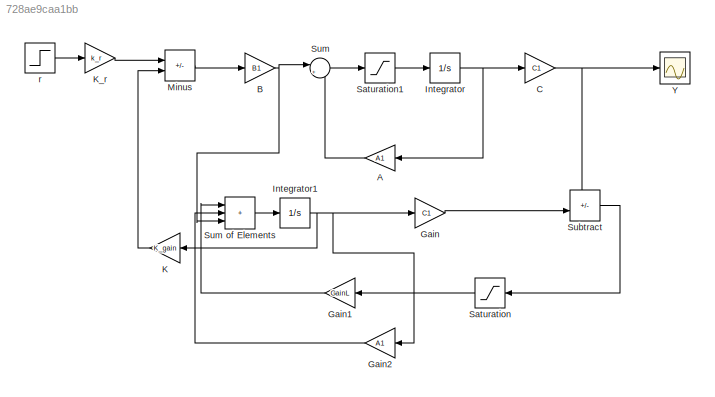
MODEL slx_728ae9caa1bb
KIND model
CONFIG AbsTol = auto
CONFIG EnableMultiTasking = off
CONFIG FixedStep = auto
CONFIG MaxStep = auto
CONFIG MinStep = auto
CONFIG RelTol = 1e-3
CONFIG SampleTimeConstraint = Unconstrained
CONFIG SolverName = VariableStepAuto
CONFIG StartTime = 0.0
CONFIG StopTime = 10.0
BLOCK [Gain] A
  Gain = A1
  Multiplication = Matrix(K*u)
  NameLocation = top
BLOCK [Gain] B
  Gain = B1
  Multiplication = Matrix(K*u)
BLOCK [Gain] C
  Gain = C1
  Multiplication = Matrix(K*u)
BLOCK [Gain] Gain
  Gain = C1
  Multiplication = Matrix(K*u)
BLOCK [Gain] Gain1
  Gain = GainL
  Multiplication = Matrix(K*u)
  NameLocation = top
BLOCK [Gain] Gain2
  Gain = A1
  Multiplication = Matrix(K*u)
  NameLocation = top
BLOCK [Integrator] Integrator
BLOCK [Integrator] Integrator1
BLOCK [Gain] K
  Gain = K_gain
  Multiplication = Matrix(K*u)
  NameLocation = top
BLOCK [Gain] K_r
  Gain = k_r
  Multiplication = Matrix(K*u)
BLOCK [Sum] Minus
  IconShape = rectangular
  Inputs = +-
BLOCK [Saturate] Saturation
  LowerLimit = -12
  NameLocation = top
  UpperLimit = 12
BLOCK [Saturate] Saturation1
  LowerLimit = -12
  UpperLimit = 12
BLOCK [Sum] Subtract
  IconShape = rectangular
  Inputs = +-
BLOCK [Sum] Sum
  Inputs = |++
BLOCK [Sum] Sum of Elements
  IconShape = rectangular
  Inputs = +++
BLOCK [Scope] Y
  Floating = off
  NumInputPorts = 1
  ScopeSpecificationString = Simulink.scopes.TimeScopeBlockCfg('CurrentConfiguration', extmgr.ConfigurationSet(extmgr.Configuration('Core','General UI',true),extmgr.Configuration('Core','Source UI',true),extmgr.Configuration('Sources','WiredSimulink',true),extmgr.Configuration('Visuals','Time Domain',true,'SerializedDisplays',{struct('MinYLimReal','-0.21298','MaxYLimReal','1.91682','YLabelReal','','MinYLimMag','0.00000','MaxY...<+1410ch>
BLOCK [Step] r
  SampleTime = 0
LINE A:1 -> Sum:2
NET B:1 -> Sum of Elements:3, Sum:1
NET C:1 -> Subtract:1, Y:1
LINE Gain1:1 -> Sum of Elements:1
LINE Gain2:1 -> Sum of Elements:2
LINE Gain:1 -> Subtract:2
NET Integrator1:1 -> Gain2:1, Gain:1, K:1
NET Integrator:1 -> A:1, C:1
LINE K:1 -> Minus:2
LINE K_r:1 -> Minus:1
LINE Minus:1 -> B:1
LINE Saturation1:1 -> Integrator:1
LINE Saturation:1 -> Gain1:1
LINE Subtract:1 -> Saturation:1
LINE Sum of Elements:1 -> Integrator1:1
LINE Sum:1 -> Saturation1:1
LINE r:1 -> K_r:1
note: NET lines group one-source signal fan-out (src -> all destinations, sorted); 1:1 wires keep LINE
